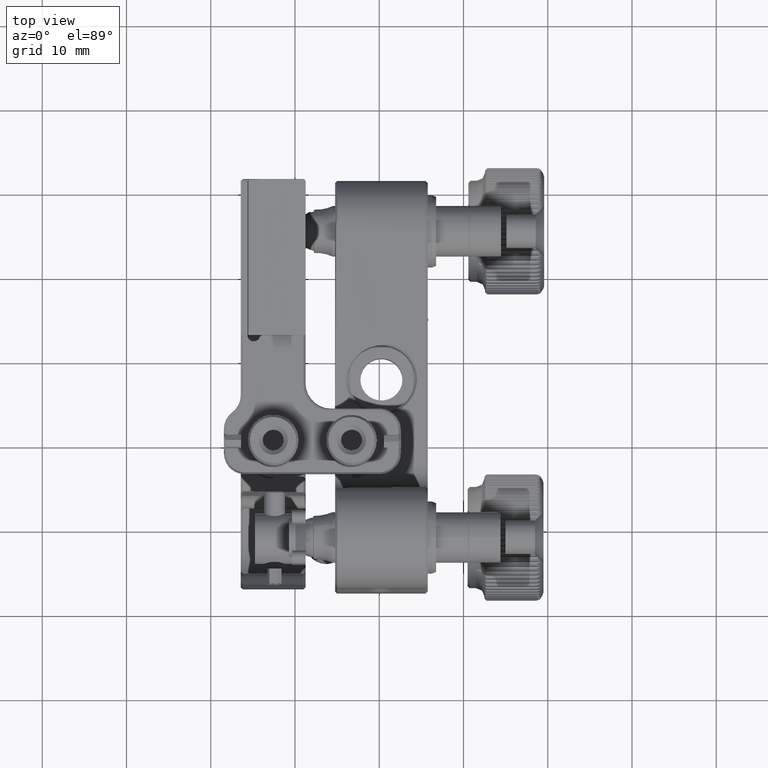
[diagram: clean part render]
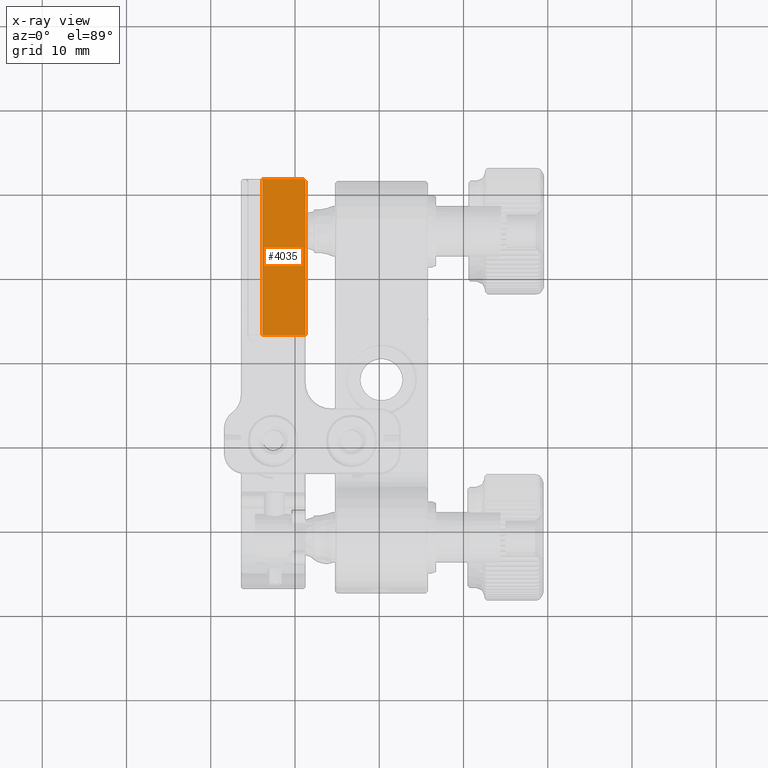
[diagram: x-ray — body ghosted, one internal face saturated and labeled with its STEP entity id]
A machine part, top view, then the same camera in x-ray: the body is ghosted and one INTERNAL B-rep face — a face not visible from any outside direction — is saturated and labeled: STEP entity #4035.
In plain terms, the highlighted planar face has unit normal (0.0698, -0, 0.9976).
Its self-contained STEP definition (entity closure, byte-faithful):
#755 = CARTESIAN_POINT ( 'NONE',  ( -18.74174326823962389, -16.23718185454955076, 69.74197472284924970 ) ) ;
#1934 = CARTESIAN_POINT ( 'NONE',  ( -18.74174326823954573, 10.81281814545047304, 69.74197472284924970 ) ) ;
#2392 = EDGE_CURVE ( 'NONE', #19089, #21383, #14130, .T. ) ;
#2440 = PLANE ( 'NONE',  #12381 ) ;
#3099 = ORIENTED_EDGE ( 'NONE', *, *, #2392, .T. ) ;
#3123 = VERTEX_POINT ( 'NONE', #22703 ) ;
#3557 = LINE ( 'NONE', #21393, #30661 ) ;
#3692 = DIRECTION ( 'NONE',  ( 0.9975640502598241977, 0.000000000000000000, -0.06975647374412560775 ) ) ;
#4035 = ADVANCED_FACE ( 'NONE', ( #14765 ), #2440, .T. ) ;
#4362 = EDGE_CURVE ( 'NONE', #3123, #17505, #3557, .T. ) ;
#5573 = DIRECTION ( 'NONE',  ( -4.573152067377492754E-18, -1.000000000000000000, -6.539912145675742158E-17 ) ) ;
#6874 = ORIENTED_EDGE ( 'NONE', *, *, #8103, .T. ) ;
#6896 = ORIENTED_EDGE ( 'NONE', *, *, #11761, .F. ) ;
#8103 = EDGE_CURVE ( 'NONE', #21383, #23781, #10994, .T. ) ;
#8205 = LINE ( 'NONE', #755, #31081 ) ;
#8426 = DIRECTION ( 'NONE',  ( 0.9975640502598243087, -2.842706820166277067E-15, -0.06975647374412499713 ) ) ;
#9373 = VECTOR ( 'NONE', #5573, 1000.000000000000000 ) ;
#9486 = CARTESIAN_POINT ( 'NONE',  ( -23.82381167323107363, -7.441721545893916989, 70.09734756448914084 ) ) ;
#9760 = VECTOR ( 'NONE', #31340, 1000.000000000000000 ) ;
#10692 = CARTESIAN_POINT ( 'NONE',  ( -18.74174326823959902, -7.437181854549536730, 69.74197472284924970 ) ) ;
#10994 = LINE ( 'NONE', #30494, #11482 ) ;
#11028 = CARTESIAN_POINT ( 'NONE',  ( -18.74174326823954573, 10.81281814545047304, 69.74197472284924970 ) ) ;
#11482 = VECTOR ( 'NONE', #3692, 1000.000000000000114 ) ;
#11761 = EDGE_CURVE ( 'NONE', #16175, #23781, #8205, .T. ) ;
#12381 = AXIS2_PLACEMENT_3D ( 'NONE', #21156, #16273, #22074 ) ;
#14130 =( BOUNDED_CURVE ( )  B_SPLINE_CURVE ( 3, ( #16948, #9486, #27015, #24409 ),
 .UNSPECIFIED., .F., .F. ) 
 B_SPLINE_CURVE_WITH_KNOTS ( ( 4, 4 ),
 ( 4.478987765147525835, 4.712388980384687009 ),
 .UNSPECIFIED. ) 
 CURVE ( )  GEOMETRIC_REPRESENTATION_ITEM ( )  RATIONAL_B_SPLINE_CURVE ( ( 1.000000000000000000, 0.9954654725562376294, 0.9954654725562376294, 1.000000000000000000 ) ) 
 REPRESENTATION_ITEM ( '' )  );
#14765 = FACE_OUTER_BOUND ( 'NONE', #30381, .T. ) ;
#16058 = CARTESIAN_POINT ( 'NONE',  ( -23.86174326823956093, -7.450739172517748088, 70.10000000000002274 ) ) ;
#16107 = CARTESIAN_POINT ( 'NONE',  ( -23.86174326823954317, -7.437181854549529625, 70.10000000000002274 ) ) ;
#16175 = VERTEX_POINT ( 'NONE', #11028 ) ;
#16273 = DIRECTION ( 'NONE',  ( 0.06975647374412560775, -6.555881944595302414E-17, 0.9975640502598241977 ) ) ;
#16301 = EDGE_CURVE ( 'NONE', #16175, #17505, #21411, .T. ) ;
#16948 = CARTESIAN_POINT ( 'NONE',  ( -23.86174326823956093, -7.450739172517748088, 70.10000000000002274 ) ) ;
#17505 = VERTEX_POINT ( 'NONE', #20327 ) ;
#18103 = DIRECTION ( 'NONE',  ( -2.901402456583529526E-15, -1.000000000000000000, 0.000000000000000000 ) ) ;
#18907 = CARTESIAN_POINT ( 'NONE',  ( -23.74609934450063520, -7.437181854549526072, 70.09191338909232627 ) ) ;
#19089 = VERTEX_POINT ( 'NONE', #16058 ) ;
#20327 = CARTESIAN_POINT ( 'NONE',  ( -18.99174326823953152, 11.06281814545046061, 69.75945642583512551 ) ) ;
#20832 = LINE ( 'NONE', #16107, #9373 ) ;
#21156 = CARTESIAN_POINT ( 'NONE',  ( -23.86174326823960001, -7.437181854549529625, 70.10000000000002274 ) ) ;
#21196 = ORIENTED_EDGE ( 'NONE', *, *, #4362, .F. ) ;
#21383 = VERTEX_POINT ( 'NONE', #18907 ) ;
#21393 = CARTESIAN_POINT ( 'NONE',  ( -23.86174326823954317, 11.06281814545047304, 70.10000000000002274 ) ) ;
#21411 = LINE ( 'NONE', #1934, #9760 ) ;
#21675 = EDGE_CURVE ( 'NONE', #3123, #19089, #20832, .T. ) ;
#22074 = DIRECTION ( 'NONE',  ( 0.9975640502598241977, 0.000000000000000000, -0.06975647374412560775 ) ) ;
#22703 = CARTESIAN_POINT ( 'NONE',  ( -23.86174326823956804, 11.06281814545047126, 70.10000000000002274 ) ) ;
#23781 = VERTEX_POINT ( 'NONE', #10692 ) ;
#24409 = CARTESIAN_POINT ( 'NONE',  ( -23.74609934450063520, -7.437181854549526072, 70.09191338909232627 ) ) ;
#27015 = CARTESIAN_POINT ( 'NONE',  ( -23.78508810557116249, -7.437181854549522519, 70.09463974885559878 ) ) ;
#27533 = ORIENTED_EDGE ( 'NONE', *, *, #16301, .T. ) ;
#30381 = EDGE_LOOP ( 'NONE', ( #6874, #6896, #27533, #21196, #30592, #3099 ) ) ;
#30494 = CARTESIAN_POINT ( 'NONE',  ( -23.86174326823960001, -7.437181854549529625, 70.10000000000002274 ) ) ;
#30592 = ORIENTED_EDGE ( 'NONE', *, *, #21675, .T. ) ;
#30661 = VECTOR ( 'NONE', #8426, 1000.000000000000000 ) ;
#31081 = VECTOR ( 'NONE', #18103, 1000.000000000000000 ) ;
#31340 = DIRECTION ( 'NONE',  ( -0.7062439675292994101, 0.7062439675293189500, 0.04938538910366264967 ) ) ;